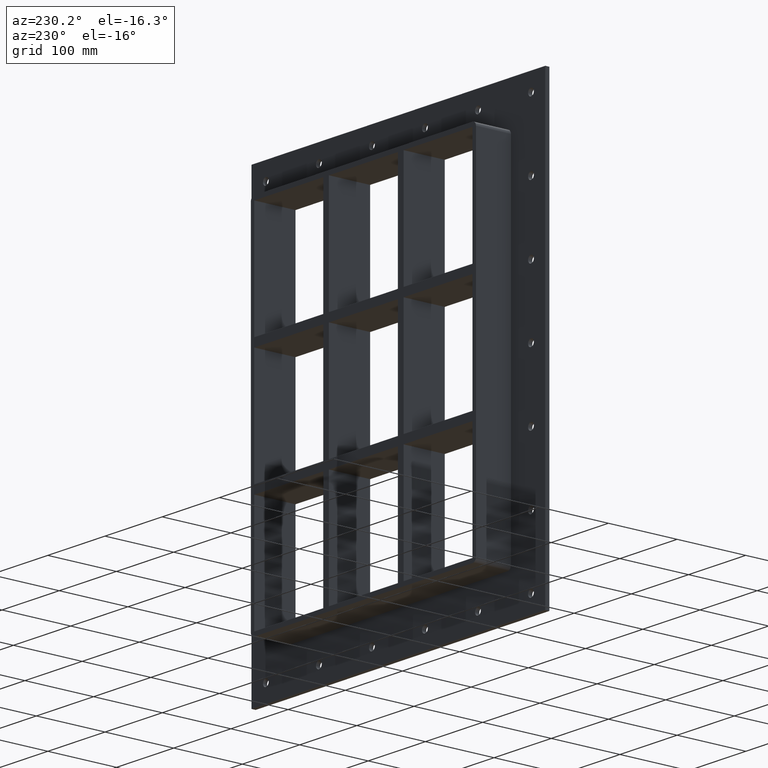
[diagram: clean part render]
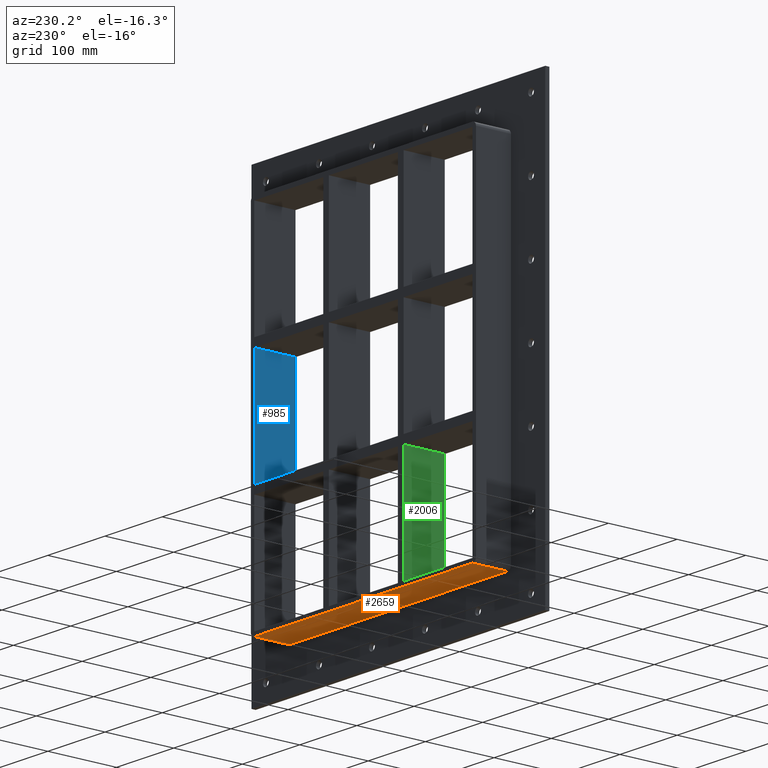
[diagram: same view with three faces highlighted in distinct colors, each labeled with its STEP entity id]
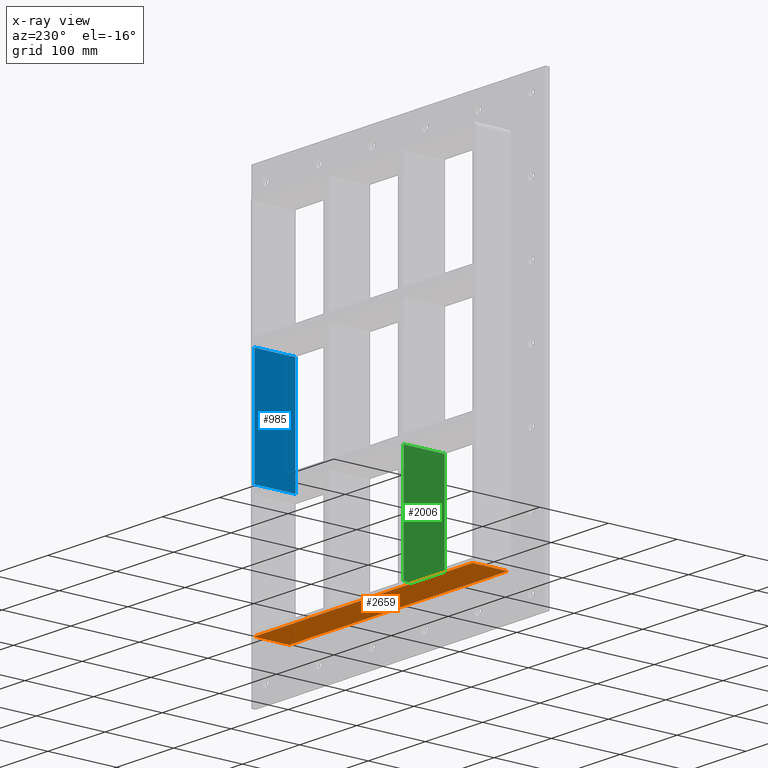
[diagram: x-ray of the same camera — body ghosted, the three highlighted faces saturated]
A machine part, auxiliary view with three faces highlighted in distinct colors.
The next image is the same camera in x-ray (body ghosted, the three faces saturated) — at least one of them is partly hidden behind the body in this view.
Their STEP definitions:

[orange] entity #2659 — the highlighted planar face has unit normal (0, 0, -1).
#1177=CARTESIAN_POINT('',(190.75000000000003,57.0,-257.25));
#1178=VERTEX_POINT('',#1177);
#1188=CARTESIAN_POINT('',(-190.75000000000003,57.0,-257.25));
#1189=VERTEX_POINT('',#1188);
#1190=CARTESIAN_POINT('',(190.75000000000006,57.0,-257.25));
#1191=DIRECTION('',(-1.0,0.0,0.0));
#1192=VECTOR('',#1191,381.50000000000006);
#1193=LINE('',#1190,#1192);
#1194=EDGE_CURVE('',#1178,#1189,#1193,.T.);
#2153=CARTESIAN_POINT('',(-190.75000000000003,6.000000000000001,-257.25));
#2154=VERTEX_POINT('',#2153);
#2164=CARTESIAN_POINT('',(190.75000000000003,6.000000000000001,-257.25));
#2165=VERTEX_POINT('',#2164);
#2166=CARTESIAN_POINT('',(190.75000000000003,6.000000000000001,-257.25));
#2167=DIRECTION('',(-1.0,0.0,0.0));
#2168=VECTOR('',#2167,381.50000000000011);
#2169=LINE('',#2166,#2168);
#2170=EDGE_CURVE('',#2165,#2154,#2169,.T.);
#2598=CARTESIAN_POINT('',(190.75000000000003,6.000000000000001,-257.25));
#2599=DIRECTION('',(0.0,1.0,0.0));
#2600=VECTOR('',#2599,51.0);
#2601=LINE('',#2598,#2600);
#2602=EDGE_CURVE('',#2165,#1178,#2601,.T.);
#2643=CARTESIAN_POINT('',(196.75000000000006,0.0,-257.25));
#2644=DIRECTION('',(0.0,0.0,-1.0));
#2645=DIRECTION('',(-1.0,0.0,0.0));
#2646=AXIS2_PLACEMENT_3D('',#2643,#2644,#2645);
#2647=PLANE('',#2646);
#2648=ORIENTED_EDGE('',*,*,#2170,.T.);
#2649=CARTESIAN_POINT('',(-190.75000000000003,57.0,-257.25));
#2650=DIRECTION('',(0.0,-1.0,0.0));
#2651=VECTOR('',#2650,51.0);
#2652=LINE('',#2649,#2651);
#2653=EDGE_CURVE('',#1189,#2154,#2652,.T.);
#2654=ORIENTED_EDGE('',*,*,#2653,.F.);
#2655=ORIENTED_EDGE('',*,*,#1194,.F.);
#2656=ORIENTED_EDGE('',*,*,#2602,.F.);
#2657=EDGE_LOOP('',(#2648,#2654,#2655,#2656));
#2658=FACE_OUTER_BOUND('',#2657,.T.);
#2659=ADVANCED_FACE('',(#2658),#2647,.T.);

[blue] entity #985 — the highlighted planar face has unit normal (1, 0, 0).
#739=CARTESIAN_POINT('',(190.74999999999815,57.0,79.749999999990777));
#740=VERTEX_POINT('',#739);
#747=CARTESIAN_POINT('',(190.74999999999818,-3.0,79.749999999990777));
#748=VERTEX_POINT('',#747);
#749=CARTESIAN_POINT('',(190.75,-3.0,79.749999999990777));
#750=DIRECTION('',(0.0,1.0,0.0));
#751=VECTOR('',#750,60.000000000000007);
#752=LINE('',#749,#751);
#753=EDGE_CURVE('',#748,#740,#752,.T.);
#955=CARTESIAN_POINT('',(190.75,0.0,251.25));
#956=DIRECTION('',(1.0,0.0,0.0));
#957=DIRECTION('',(0.0,0.0,-1.0));
#958=AXIS2_PLACEMENT_3D('',#955,#956,#957);
#959=PLANE('',#958);
#960=ORIENTED_EDGE('',*,*,#753,.T.);
#961=CARTESIAN_POINT('',(190.74999999999986,57.0,-79.749999999999943));
#962=VERTEX_POINT('',#961);
#963=CARTESIAN_POINT('',(190.75,57.0,-79.749999999999943));
#964=DIRECTION('',(0.0,0.0,1.0));
#965=VECTOR('',#964,159.49999999999073);
#966=LINE('',#963,#965);
#967=EDGE_CURVE('',#962,#740,#966,.T.);
#968=ORIENTED_EDGE('',*,*,#967,.F.);
#969=CARTESIAN_POINT('',(190.74999999999989,-3.0,-79.749999999999943));
#970=VERTEX_POINT('',#969);
#971=CARTESIAN_POINT('',(190.75,57.000000000000007,-79.749999999999943));
#972=DIRECTION('',(0.0,-1.0,0.0));
#973=VECTOR('',#972,60.000000000000007);
#974=LINE('',#971,#973);
#975=EDGE_CURVE('',#962,#970,#974,.T.);
#976=ORIENTED_EDGE('',*,*,#975,.T.);
#977=CARTESIAN_POINT('',(190.75,-3.0,79.749999999990777));
#978=DIRECTION('',(0.0,0.0,-1.0));
#979=VECTOR('',#978,159.49999999999073);
#980=LINE('',#977,#979);
#981=EDGE_CURVE('',#748,#970,#980,.T.);
#982=ORIENTED_EDGE('',*,*,#981,.F.);
#983=EDGE_LOOP('',(#960,#968,#976,#982));
#984=FACE_OUTER_BOUND('',#983,.T.);
#985=ADVANCED_FACE('',(#984),#959,.F.);

[green] entity #2006 — the highlighted planar face has unit normal (-1, 0, 0).
#1340=CARTESIAN_POINT('',(-70.250000000001364,57.0,-251.25));
#1341=VERTEX_POINT('',#1340);
#1348=CARTESIAN_POINT('',(-70.250000000001407,57.0,-91.750000000009422));
#1349=VERTEX_POINT('',#1348);
#1350=CARTESIAN_POINT('',(-70.250000000001364,57.0,-251.25));
#1351=DIRECTION('',(0.0,0.0,1.0));
#1352=VECTOR('',#1351,159.49999999999056);
#1353=LINE('',#1350,#1352);
#1354=EDGE_CURVE('',#1341,#1349,#1353,.T.);
#1793=CARTESIAN_POINT('',(-70.250000000001407,-3.0,-91.750000000009422));
#1794=VERTEX_POINT('',#1793);
#1803=CARTESIAN_POINT('',(-70.250000000001364,-3.0,-251.25));
#1804=VERTEX_POINT('',#1803);
#1805=CARTESIAN_POINT('',(-70.250000000001364,-3.0,-251.25));
#1806=DIRECTION('',(0.0,0.0,1.0));
#1807=VECTOR('',#1806,159.49999999999056);
#1808=LINE('',#1805,#1807);
#1809=EDGE_CURVE('',#1804,#1794,#1808,.T.);
#1903=CARTESIAN_POINT('',(-70.250000000001393,-3.0,-91.750000000009408));
#1904=DIRECTION('',(0.0,1.0,0.0));
#1905=VECTOR('',#1904,60.0);
#1906=LINE('',#1903,#1905);
#1907=EDGE_CURVE('',#1794,#1349,#1906,.T.);
#1990=CARTESIAN_POINT('',(-70.250000000001364,-3.0,-251.25));
#1991=DIRECTION('',(-1.0,0.0,0.0));
#1992=DIRECTION('',(0.0,0.0,1.0));
#1993=AXIS2_PLACEMENT_3D('',#1990,#1991,#1992);
#1994=PLANE('',#1993);
#1995=ORIENTED_EDGE('',*,*,#1907,.T.);
#1996=ORIENTED_EDGE('',*,*,#1354,.F.);
#1997=CARTESIAN_POINT('',(-70.250000000001364,-3.0,-251.25));
#1998=DIRECTION('',(0.0,1.0,0.0));
#1999=VECTOR('',#1998,60.000000000000007);
#2000=LINE('',#1997,#1999);
#2001=EDGE_CURVE('',#1804,#1341,#2000,.T.);
#2002=ORIENTED_EDGE('',*,*,#2001,.F.);
#2003=ORIENTED_EDGE('',*,*,#1809,.T.);
#2004=EDGE_LOOP('',(#1995,#1996,#2002,#2003));
#2005=FACE_OUTER_BOUND('',#2004,.T.);
#2006=ADVANCED_FACE('',(#2005),#1994,.T.);